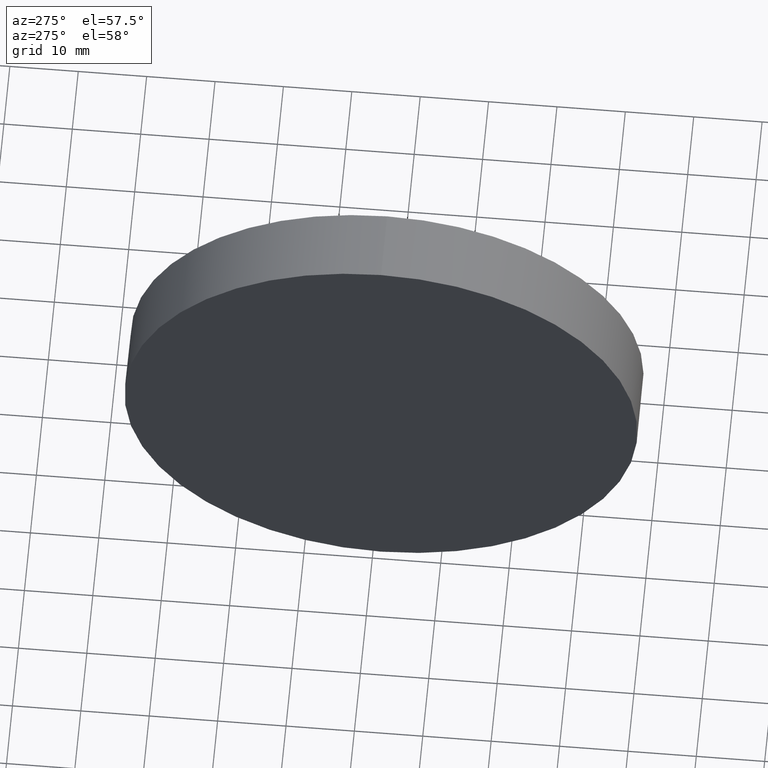
[diagram: clean part render]
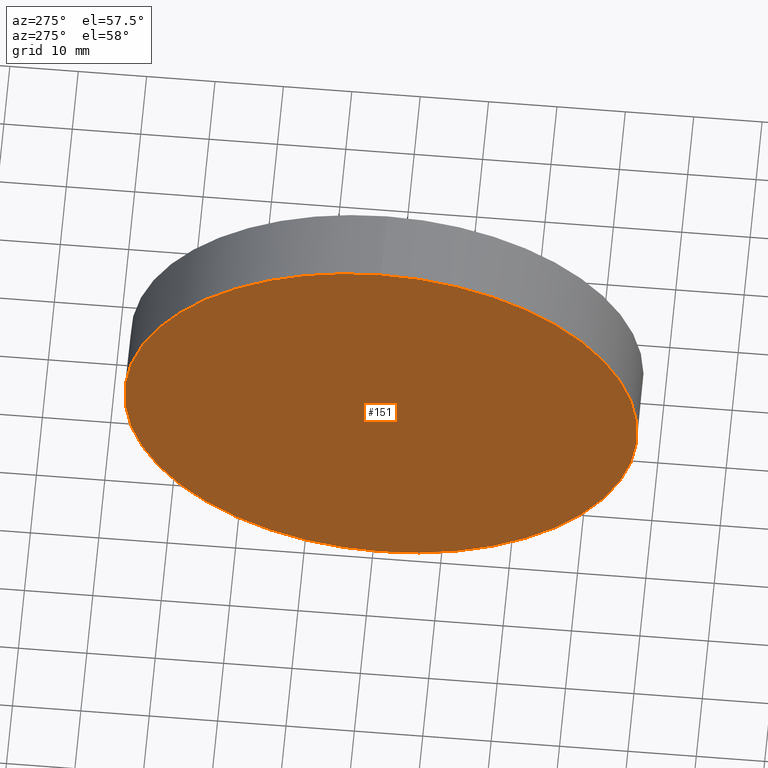
[diagram: same view with one face highlighted and labeled with its STEP entity id]
A machine part, auxiliary view. The second image highlights one B-rep face of the part: STEP entity #151.
In plain terms, the highlighted planar face has unit normal (1, 0, 0).
Its self-contained STEP definition (entity closure, byte-faithful):
#2 = CIRCLE ( 'NONE', #160, 37.50000000000000700 ) ;
#5 = EDGE_CURVE ( 'NONE', #101, #154, #2, .T. ) ;
#9 = DIRECTION ( 'NONE',  ( -1.000000000000000000, -0.0000000000000000000, -0.0000000000000000000 ) ) ;
#25 = CIRCLE ( 'NONE', #156, 37.50000000000000700 ) ;
#29 = DIRECTION ( 'NONE',  ( 0.0000000000000000000, 0.0000000000000000000, -1.000000000000000000 ) ) ;
#42 = CARTESIAN_POINT ( 'NONE',  ( 230.1996119052661200, 138.7560422467448700, 0.0000000000000000000 ) ) ;
#46 = DIRECTION ( 'NONE',  ( 0.0000000000000000000, 0.0000000000000000000, 1.000000000000000000 ) ) ;
#54 = DIRECTION ( 'NONE',  ( 1.000000000000000000, 0.0000000000000000000, 0.0000000000000000000 ) ) ;
#70 = CARTESIAN_POINT ( 'NONE',  ( 230.1996119052661200, 138.7560422467448700, 37.50000000000000700 ) ) ;
#79 = FACE_OUTER_BOUND ( 'NONE', #143, .T. ) ;
#87 = ORIENTED_EDGE ( 'NONE', *, *, #114, .T. ) ;
#92 = AXIS2_PLACEMENT_3D ( 'NONE', #113, #54, #29 ) ;
#94 = PLANE ( 'NONE',  #92 ) ;
#101 = VERTEX_POINT ( 'NONE', #70 ) ;
#113 = CARTESIAN_POINT ( 'NONE',  ( 230.1996119052661200, 138.7560422467448700, 0.0000000000000000000 ) ) ;
#114 = EDGE_CURVE ( 'NONE', #154, #101, #25, .T. ) ;
#126 = CARTESIAN_POINT ( 'NONE',  ( 230.1996119052661200, 138.7560422467448700, -37.50000000000000700 ) ) ;
#138 = CARTESIAN_POINT ( 'NONE',  ( 230.1996119052661200, 138.7560422467448700, 0.0000000000000000000 ) ) ;
#143 = EDGE_LOOP ( 'NONE', ( #185, #87 ) ) ;
#151 = ADVANCED_FACE ( 'NONE', ( #79 ), #94, .F. ) ;
#154 = VERTEX_POINT ( 'NONE', #126 ) ;
#156 = AXIS2_PLACEMENT_3D ( 'NONE', #42, #175, #163 ) ;
#160 = AXIS2_PLACEMENT_3D ( 'NONE', #138, #9, #46 ) ;
#163 = DIRECTION ( 'NONE',  ( 0.0000000000000000000, 0.0000000000000000000, 1.000000000000000000 ) ) ;
#175 = DIRECTION ( 'NONE',  ( -1.000000000000000000, -0.0000000000000000000, -0.0000000000000000000 ) ) ;
#185 = ORIENTED_EDGE ( 'NONE', *, *, #5, .T. ) ;